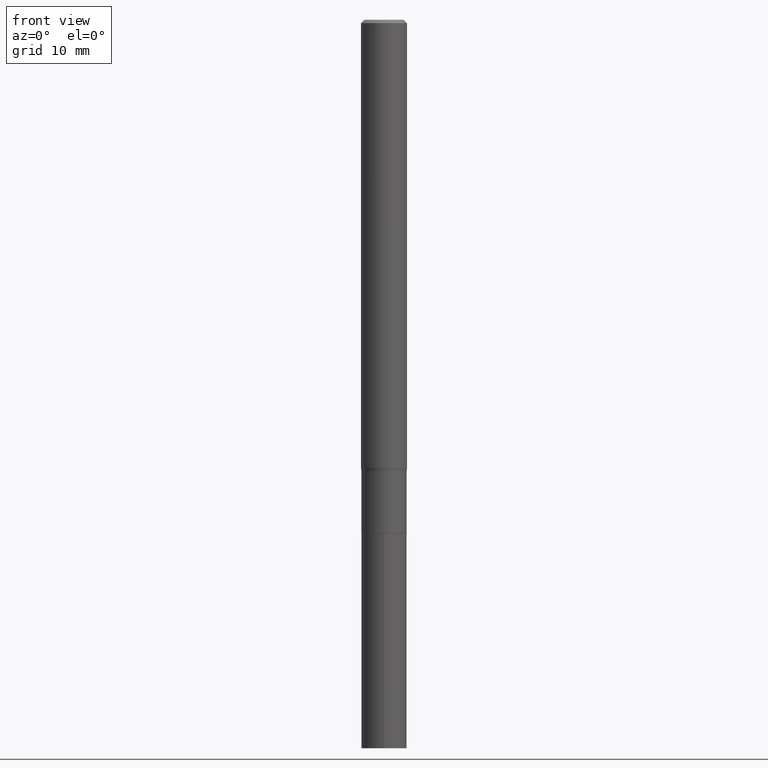
[diagram: clean part render]
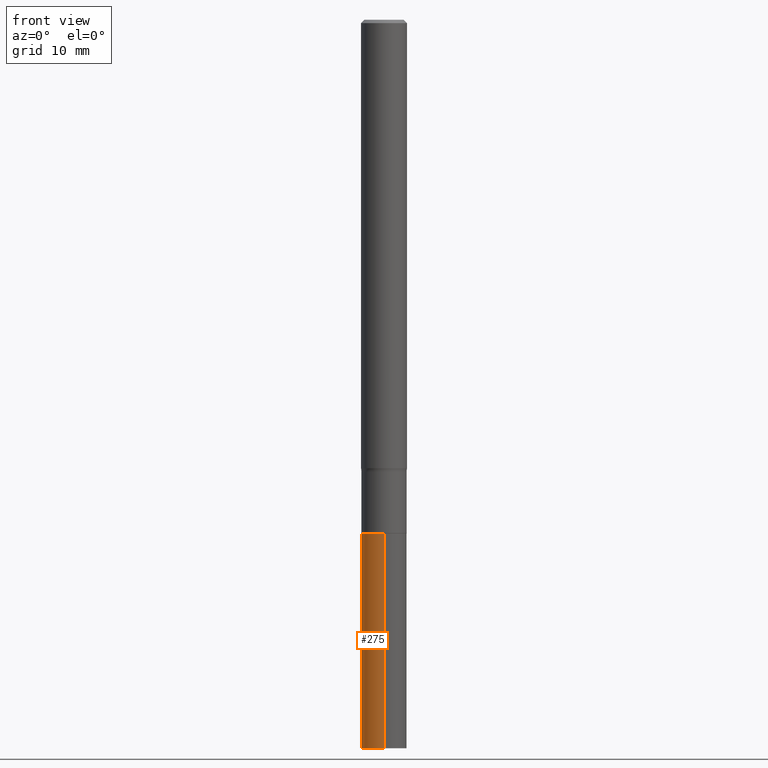
[diagram: same view with one face highlighted and labeled with its STEP entity id]
A machine part, front view. The second image highlights one B-rep face of the part: STEP entity #275.
In plain terms, the highlighted cylindrical surface (edge-blend (fillet) strip) has radius 2.9502 mm, axis along (-0, 0, 1).
Its self-contained STEP definition (entity closure, byte-faithful):
#5 = VERTEX_POINT ( 'NONE', #296 ) ;
#16 = LINE ( 'NONE', #88, #391 ) ;
#24 = VECTOR ( 'NONE', #262, 39.37007874015748143 ) ;
#37 = CARTESIAN_POINT ( 'NONE',  ( -8.110711150131954537E-16, -0.1161500000000092042, -2.636199999999999655 ) ) ;
#48 = CARTESIAN_POINT ( 'NONE',  ( 6.446744866865257163E-29, -9.204243105458301447E-15, -2.636200000000000099 ) ) ;
#52 = CARTESIAN_POINT ( 'NONE',  ( 9.139920139182118548E-29, -1.306832199932537301E-14, -3.740200000000000635 ) ) ;
#57 = CARTESIAN_POINT ( 'NONE',  ( -8.110711150131686325E-16, -0.1161500000000130761, -3.740200000000000191 ) ) ;
#66 = ORIENTED_EDGE ( 'NONE', *, *, #205, .T. ) ;
#88 = CARTESIAN_POINT ( 'NONE',  ( 8.252953875854206811E-16, 0.1161499999999908023, -2.636200000000000543 ) ) ;
#102 = EDGE_LOOP ( 'NONE', ( #185, #431, #66, #288 ) ) ;
#108 = VERTEX_POINT ( 'NONE', #37 ) ;
#113 = DIRECTION ( 'NONE',  ( -2.439470355359473651E-29, 3.500071461836113425E-15, 1.000000000000000000 ) ) ;
#117 = CIRCLE ( 'NONE', #369, 0.1161500000000000171 ) ;
#122 = CYLINDRICAL_SURFACE ( 'NONE', #441, 0.1161500000000000032 ) ;
#141 = CIRCLE ( 'NONE', #349, 0.1161500000000000032 ) ;
#151 = EDGE_CURVE ( 'NONE', #5, #108, #141, .T. ) ;
#154 = DIRECTION ( 'NONE',  ( -6.982962677686265922E-15, -1.000000000000000000, 4.703999989090422785E-15 ) ) ;
#185 = ORIENTED_EDGE ( 'NONE', *, *, #286, .F. ) ;
#187 = DIRECTION ( 'NONE',  ( -2.439470355359473651E-29, 3.500071461836113425E-15, 1.000000000000000000 ) ) ;
#205 = EDGE_CURVE ( 'NONE', #332, #108, #450, .T. ) ;
#207 = VERTEX_POINT ( 'NONE', #403 ) ;
#228 = DIRECTION ( 'NONE',  ( -2.439470355359473651E-29, 3.500071461836113425E-15, 1.000000000000000000 ) ) ;
#231 = DIRECTION ( 'NONE',  ( -2.439470355359473651E-29, 3.500071461836113425E-15, 1.000000000000000000 ) ) ;
#249 = EDGE_CURVE ( 'NONE', #207, #332, #117, .T. ) ;
#262 = DIRECTION ( 'NONE',  ( -2.439470355359473651E-29, 3.500071461836113425E-15, 1.000000000000000000 ) ) ;
#267 = DIRECTION ( 'NONE',  ( -6.982962677686265922E-15, -1.000000000000000000, 4.703999989090422785E-15 ) ) ;
#275 = ADVANCED_FACE ( 'NONE', ( #295 ), #122, .T. ) ;
#286 = EDGE_CURVE ( 'NONE', #207, #5, #16, .T. ) ;
#288 = ORIENTED_EDGE ( 'NONE', *, *, #151, .F. ) ;
#295 = FACE_OUTER_BOUND ( 'NONE', #102, .T. ) ;
#296 = CARTESIAN_POINT ( 'NONE',  ( 8.252953875854478968E-16, 0.1161499999999908023, -2.636200000000000543 ) ) ;
#332 = VERTEX_POINT ( 'NONE', #57 ) ;
#349 = AXIS2_PLACEMENT_3D ( 'NONE', #48, #113, #267 ) ;
#369 = AXIS2_PLACEMENT_3D ( 'NONE', #52, #187, #154 ) ;
#374 = DIRECTION ( 'NONE',  ( -6.982962677686265922E-15, -1.000000000000000000, 4.703999989090422785E-15 ) ) ;
#391 = VECTOR ( 'NONE', #231, 39.37007874015748143 ) ;
#403 = CARTESIAN_POINT ( 'NONE',  ( 8.252953875854341903E-16, 0.1161499999999869581, -3.740200000000001079 ) ) ;
#431 = ORIENTED_EDGE ( 'NONE', *, *, #249, .T. ) ;
#441 = AXIS2_PLACEMENT_3D ( 'NONE', #447, #228, #374 ) ;
#443 = CARTESIAN_POINT ( 'NONE',  ( -8.110711150131954537E-16, -0.1161500000000092042, -2.636199999999999655 ) ) ;
#447 = CARTESIAN_POINT ( 'NONE',  ( 6.446744866865257163E-29, -9.204243105458301447E-15, -2.636200000000000099 ) ) ;
#450 = LINE ( 'NONE', #443, #24 ) ;